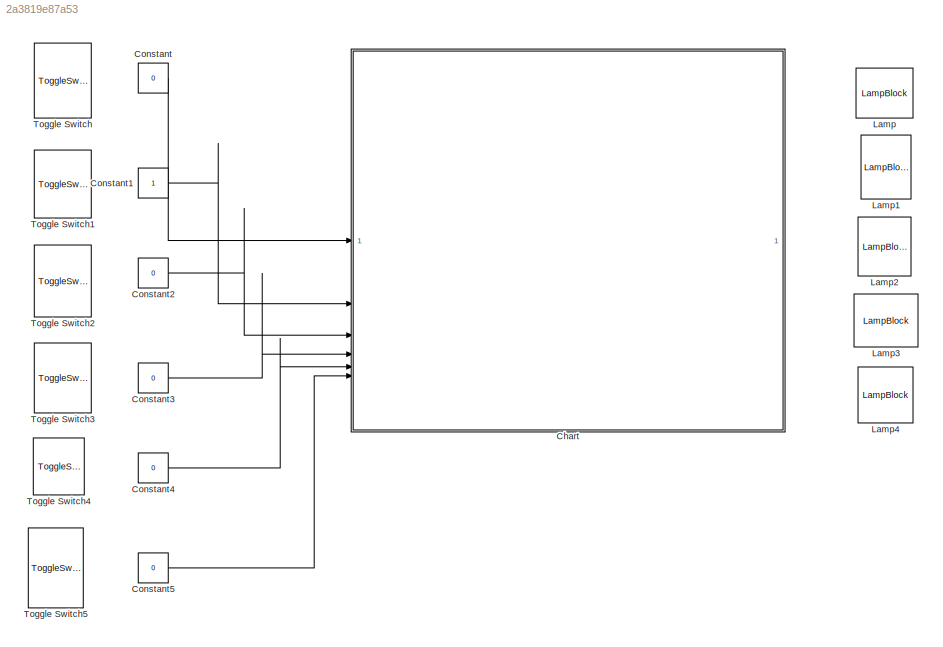
MODEL slx_2a3819e87a53
KIND model
CONFIG AbsTol = auto
CONFIG EnableMultiTasking = off
CONFIG FixedStep = auto
CONFIG MaxStep = auto
CONFIG MinStep = auto
CONFIG RelTol = 1e-3
CONFIG SampleTimeConstraint = Unconstrained
CONFIG SolverName = VariableStepAuto
CONFIG StartTime = 0.0
CONFIG StopTime = inf
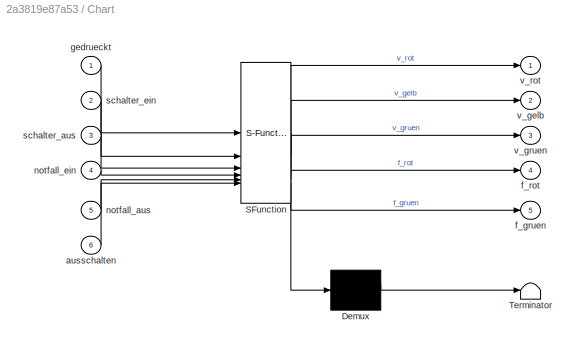
BLOCK [SubSystem] Chart
  ErrorFcn = Stateflow.Translate.translate
  PermitHierarchicalResolution = ExplicitOnly
  SFBlockType = Chart
  TreatAsAtomicUnit = on
BLOCK [Demux] Chart/ Demux 
  Outputs = 1
BLOCK [S-Function] Chart/ SFunction 
  EnableBusSupport = on
  FunctionName = sf_sfun
  PortCounts = [6 6]
  SFcnIsStateOwnerBlock = off
  SFunctionDeploymentMode = off
  Tag = Stateflow S-Function 3
BLOCK [Terminator] Chart/ Terminator 
BLOCK [Inport] Chart/ausschalten
  Port = 6
BLOCK [Outport] Chart/f_gruen
  Port = 5
BLOCK [Outport] Chart/f_rot
  Port = 4
BLOCK [Inport] Chart/gedrueckt
BLOCK [Inport] Chart/notfall_aus
  Port = 5
BLOCK [Inport] Chart/notfall_ein
  Port = 4
BLOCK [Inport] Chart/schalter_aus
  Port = 3
BLOCK [Inport] Chart/schalter_ein
  Port = 2
BLOCK [Outport] Chart/v_gelb
  Port = 2
BLOCK [Outport] Chart/v_gruen
  Port = 3
BLOCK [Outport] Chart/v_rot
BLOCK [Constant] Constant
  Value = 0
BLOCK [Constant] Constant1
BLOCK [Constant] Constant2
  Value = 0
BLOCK [Constant] Constant3
  Value = 0
BLOCK [Constant] Constant4
  Value = 0
BLOCK [Constant] Constant5
  Value = 0
BLOCK [LampBlock] Lamp
  LabelPosition = Hide
BLOCK [LampBlock] Lamp1
  LabelPosition = Hide
BLOCK [LampBlock] Lamp2
  LabelPosition = Hide
BLOCK [LampBlock] Lamp3
  LabelPosition = Hide
BLOCK [LampBlock] Lamp4
  LabelPosition = Hide
BLOCK [ToggleSwitchBlock] Toggle Switch
BLOCK [ToggleSwitchBlock] Toggle Switch1
BLOCK [ToggleSwitchBlock] Toggle Switch2
BLOCK [ToggleSwitchBlock] Toggle Switch3
BLOCK [ToggleSwitchBlock] Toggle Switch4
BLOCK [ToggleSwitchBlock] Toggle Switch5
LINE Constant1:1 -> Chart:2
LINE Constant2:1 -> Chart:3
LINE Constant3:1 -> Chart:4
LINE Constant4:1 -> Chart:5
LINE Constant5:1 -> Chart:6
LINE Constant:1 -> Chart:1
CHART Chart states=18 transitions=24
  STATE_LABEL 'Normaler_betrieb \n'
  STATE_LABEL 'Startvorgang'
  STATE_LABEL 'A'
  STATE_LABEL 'Gelb_blink_und_f_rot\n\nentry:\nv_gelb = 0;\nf_rot = 0;\nexit:\nv_gelb = 1;'
  STATE_LABEL 'Gelb_blink_und_f_rot1\n\nentry:\nv_gelb = 1;\nf_rot = 0;\nexit:\nv_gelb = 0;'
  STATE_LABEL 'after(1, sec)'
  STATE_LABEL 'after(1, sec)'
  STATE_LABEL 'Ampel_Aus\n\nentry:\n v_rot = 1;\n v_gelb = 1;\n v_gruen = 1;\n f_rot = 1;\n f_gruen = 1;\n'
  STATE_LABEL 'Verkehr_wechsel_von_gelb_auf_rot\n\nentry:\nv_gelb = 1;\nv_rot = 0;\n'
  STATE_LABEL '[schalter_ein]'
  STATE_LABEL '[schalter_aus]'
  STATE_LABEL 'after(10, sec)'
  STATE_LABEL 'Betrieb\n\n'
  STATE_LABEL 'F_wechselt_von_gruen_auf_rot\n\nentry:\nf_gruen = 1;\nf_rot = 0;\n'
  STATE_LABEL 'F_wechselt_von_rot_auf_gruen\n\nentry:\nf_rot = 1;\nf_gruen = 0;\nexit:\nf_gruen = 1;'
  STATE_LABEL 'V_schaltet_von_rot_auf_rot_gelb\n\nentry:\nv_rot = 0;\nv_gelb = 0;\nexit:\nv_rot = 1;\nv_gelb = 1'
  STATE_LABEL 'V_schaltet_von_rot_gelb_auf_gruen\n\nentry:\nv_rot = 1;\nv_gelb = 1;\nv_gruen = 0;\nexit:\nv_gruen = 1;'
  STATE_LABEL 'V_schaltet_von_gruen_auf_gelb\n\nentry:\nv_gruen = 1;\nv_gelb = 0;\nexit:\nv_gelb = 1;'
  STATE_LABEL 'after(15, sec)'
  STATE_LABEL 'after(2, sec)'
  STATE_LABEL 'after(2, sec)'
  STATE_LABEL 'after(40, sec)'
  STATE_LABEL 'after(15, sec)[gedrueckt]'
  STATE_LABEL 'Ausschalt_vorgang'
  STATE_LABEL 'V_blink_gelb\n\nentry:\nv_gelb = 0;\nexit:\nv_gelb = 1;'
  STATE_LABEL 'V_blink_gelb1\n\nentry:\nv_gelb = 1;\nexit:\nv_gelb = 0;'
  STATE_LABEL 'after(1, sec)'
  STATE_LABEL 'after(1, sec)'
  STATE_LABEL 'after(10, sec)'
  STATE_LABEL 'after(5, sec)'
  STATE_LABEL '[ausschalten]'
  STATE_LABEL 'after(2, sec)'
  STATE_LABEL 'Startvorgang'
  STATE_LABEL 'A'
  STATE_LABEL 'Gelb_blink_und_f_rot\n\nentry:\nv_gelb = 0;\nf_rot = 0;\nexit:\nv_gelb = 1;'
  STATE_LABEL 'Gelb_blink_und_f_rot1\n\nentry:\nv_gelb = 1;\nf_rot = 0;\nexit:\nv_gelb = 0;'
  STATE_LABEL 'after(1, sec)'
  STATE_LABEL 'after(1, sec)'
  STATE_LABEL 'Ampel_Aus\n\nentry:\n v_rot = 1;\n v_gelb = 1;\n v_gruen = 1;\n f_rot = 1;\n f_gruen = 1;\n'
  STATE_LABEL 'Verkehr_wechsel_von_gelb_auf_rot\n\nentry:\nv_gelb = 1;\nv_rot = 0;\n'
CHART  states=0 transitions=0
